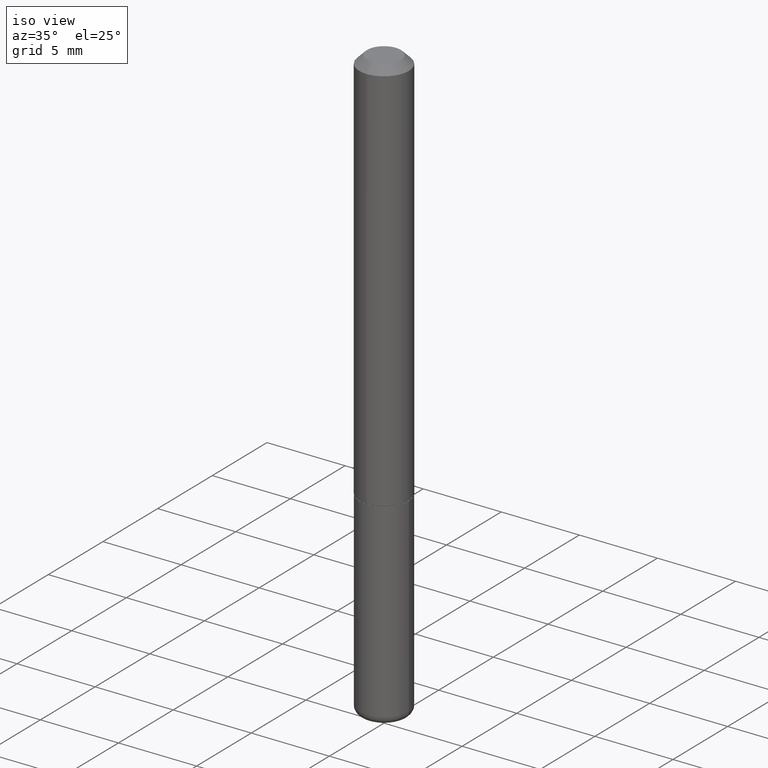
[diagram: clean part render]
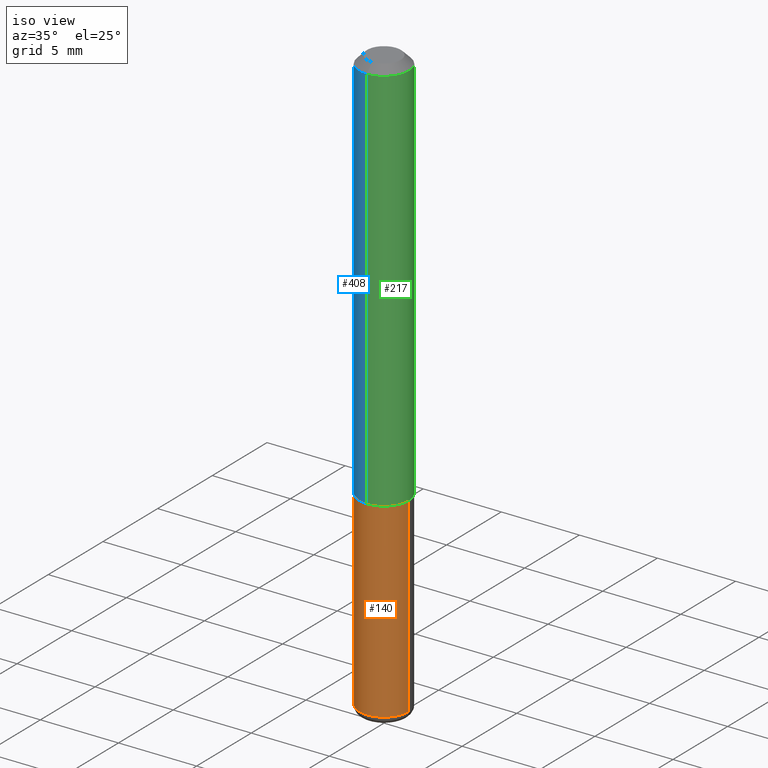
[diagram: same view with three faces highlighted in distinct colors, each labeled with its STEP entity id]
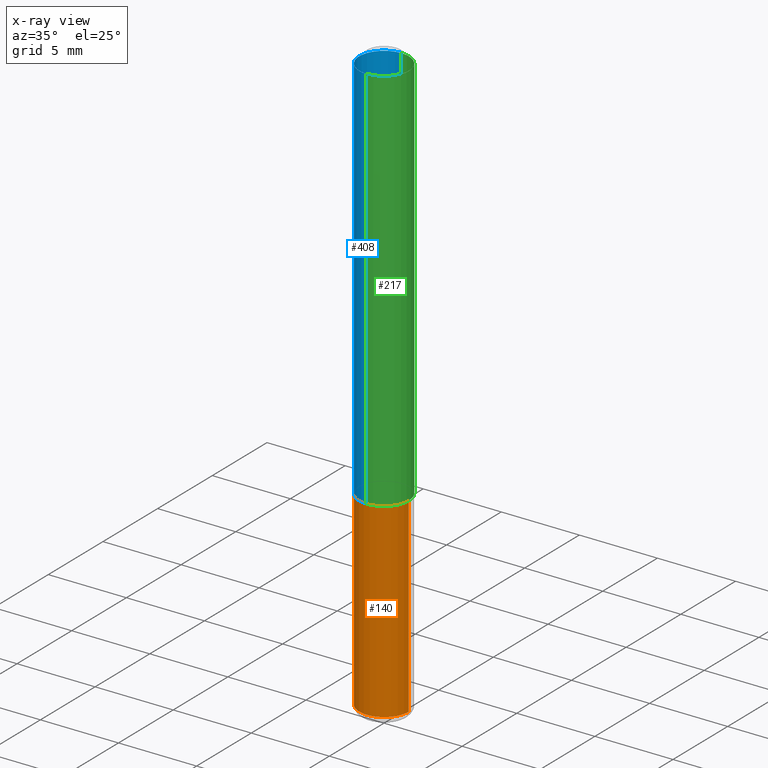
[diagram: x-ray of the same camera — body ghosted, the three highlighted faces saturated]
A machine part, iso view with three faces highlighted in distinct colors.
The next image is the same camera in x-ray (body ghosted, the three faces saturated) — at least one of them is partly hidden behind the body in this view.
Their STEP definitions:

[orange] entity #140 — the highlighted cylindrical surface (edge-blend (fillet) strip) has radius 1.5875 mm, axis along (-0, 0, 1).
#5 = CARTESIAN_POINT ( 'NONE',  ( 0.06250000000000001388, -4.364351673553918173E-16, 3.047610484872460571E-30 ) ) ;
#9 = DIRECTION ( 'NONE',  ( -2.445468806185136597E-29, 3.491481338843145583E-15, 1.000000000000000000 ) ) ;
#17 = AXIS2_PLACEMENT_3D ( 'NONE', #123, #275, #401 ) ;
#21 = CARTESIAN_POINT ( 'NONE',  ( -0.06250000000000001388, 4.440892098500627148E-16, -3.074334431409317165E-30 ) ) ;
#28 = CARTESIAN_POINT ( 'NONE',  ( -0.06250000000000001388, -4.723303171637793051E-15, -1.479999999999999982 ) ) ;
#35 = EDGE_CURVE ( 'NONE', #258, #110, #50, .T. ) ;
#44 = FACE_OUTER_BOUND ( 'NONE', #105, .T. ) ;
#49 = CARTESIAN_POINT ( 'NONE',  ( -0.06250000000000001388, -3.885347650315437417E-15, -0.9999999999999996669 ) ) ;
#50 = CIRCLE ( 'NONE', #174, 0.06250000000000001388 ) ;
#81 = DIRECTION ( 'NONE',  ( -2.445468806185136877E-29, 3.491481338843145188E-15, 1.000000000000000000 ) ) ;
#105 = EDGE_LOOP ( 'NONE', ( #228, #403, #381, #202 ) ) ;
#110 = VERTEX_POINT ( 'NONE', #368 ) ;
#123 = CARTESIAN_POINT ( 'NONE',  ( 0.000000000000000000, 0.000000000000000000, 0.000000000000000000 ) ) ;
#140 = ADVANCED_FACE ( 'NONE', ( #44 ), #405, .T. ) ;
#157 = EDGE_CURVE ( 'NONE', #258, #362, #409, .T. ) ;
#174 = AXIS2_PLACEMENT_3D ( 'NONE', #418, #324, #294 ) ;
#184 = VECTOR ( 'NONE', #81, 39.37007874015748143 ) ;
#186 = CARTESIAN_POINT ( 'NONE',  ( 0.06250000000000001388, -3.927916506198536858E-15, -0.9999999999999996669 ) ) ;
#202 = ORIENTED_EDGE ( 'NONE', *, *, #360, .F. ) ;
#228 = ORIENTED_EDGE ( 'NONE', *, *, #157, .F. ) ;
#229 = EDGE_CURVE ( 'NONE', #110, #290, #296, .T. ) ;
#257 = VECTOR ( 'NONE', #373, 39.37007874015748143 ) ;
#258 = VERTEX_POINT ( 'NONE', #28 ) ;
#275 = DIRECTION ( 'NONE',  ( -2.445468806185136597E-29, 3.491481338843145583E-15, 1.000000000000000000 ) ) ;
#283 = AXIS2_PLACEMENT_3D ( 'NONE', #299, #9, #331 ) ;
#290 = VERTEX_POINT ( 'NONE', #186 ) ;
#294 = DIRECTION ( 'NONE',  ( 1.000000000000000000, -6.982962677686261189E-15, 0.000000000000000000 ) ) ;
#296 = LINE ( 'NONE', #5, #184 ) ;
#299 = CARTESIAN_POINT ( 'NONE',  ( 2.445468806185136036E-29, -3.491481338843144399E-15, -0.9999999999999996669 ) ) ;
#324 = DIRECTION ( 'NONE',  ( -2.445468806185136597E-29, 3.491481338843145583E-15, 1.000000000000000000 ) ) ;
#331 = DIRECTION ( 'NONE',  ( 1.000000000000000000, -6.982962677686269077E-15, 0.000000000000000000 ) ) ;
#360 = EDGE_CURVE ( 'NONE', #362, #290, #374, .T. ) ;
#362 = VERTEX_POINT ( 'NONE', #49 ) ;
#368 = CARTESIAN_POINT ( 'NONE',  ( 0.06250000000000001388, -5.603827548843246548E-15, -1.479999999999999982 ) ) ;
#373 = DIRECTION ( 'NONE',  ( -2.445468806185136877E-29, 3.491481338843145188E-15, 1.000000000000000000 ) ) ;
#374 = CIRCLE ( 'NONE', #283, 0.06250000000000001388 ) ;
#381 = ORIENTED_EDGE ( 'NONE', *, *, #229, .T. ) ;
#401 = DIRECTION ( 'NONE',  ( 1.000000000000000000, -6.982962677686267499E-15, 4.876176775795935793E-29 ) ) ;
#403 = ORIENTED_EDGE ( 'NONE', *, *, #35, .T. ) ;
#405 = CYLINDRICAL_SURFACE ( 'NONE', #17, 0.06250000000000001388 ) ;
#409 = LINE ( 'NONE', #21, #257 ) ;
#418 = CARTESIAN_POINT ( 'NONE',  ( 3.619293833154002365E-29, -5.167392381487854879E-15, -1.479999999999999982 ) ) ;

[blue] entity #408 — the highlighted cylindrical surface (edge-blend (fillet) strip) has radius 1.5875 mm, axis along (-0, 0, 1).
#12 = CARTESIAN_POINT ( 'NONE',  ( -4.364351673553682501E-16, -0.06250000000000363598, -0.9989999999999996660 ) ) ;
#37 = CYLINDRICAL_SURFACE ( 'NONE', #265, 0.06250000000000002776 ) ;
#38 = ORIENTED_EDGE ( 'NONE', *, *, #376, .T. ) ;
#46 = DIRECTION ( 'NONE',  ( -6.982962677686265922E-15, -1.000000000000000000, 3.551402391763545142E-15 ) ) ;
#70 = EDGE_LOOP ( 'NONE', ( #239, #388, #38, #321 ) ) ;
#74 = EDGE_CURVE ( 'NONE', #135, #261, #136, .T. ) ;
#111 = VECTOR ( 'NONE', #221, 39.37007874015748143 ) ;
#126 = CARTESIAN_POINT ( 'NONE',  ( -4.287811248607198352E-16, -0.06250000000000001388, -0.01999999999999984776 ) ) ;
#132 = CARTESIAN_POINT ( 'NONE',  ( -4.364351673553918666E-16, -0.06250000000000002776, 2.202416981789175288E-16 ) ) ;
#135 = VERTEX_POINT ( 'NONE', #279 ) ;
#136 = CIRCLE ( 'NONE', #282, 0.06249999999999995143 ) ;
#137 = AXIS2_PLACEMENT_3D ( 'NONE', #226, #289, #197 ) ;
#161 = DIRECTION ( 'NONE',  ( -2.422853900557315141E-29, 3.523867170862678489E-15, 1.000000000000000000 ) ) ;
#162 = FACE_OUTER_BOUND ( 'NONE', #70, .T. ) ;
#170 = CARTESIAN_POINT ( 'NONE',  ( 0.000000000000000000, 0.000000000000000000, 0.000000000000000000 ) ) ;
#178 = LINE ( 'NONE', #396, #327 ) ;
#197 = DIRECTION ( 'NONE',  ( -6.982962677686265133E-15, -1.000000000000000000, 4.370956789862812472E-15 ) ) ;
#213 = DIRECTION ( 'NONE',  ( -2.422853900557315141E-29, 3.523867170862678489E-15, 1.000000000000000000 ) ) ;
#221 = DIRECTION ( 'NONE',  ( -2.422853900557315141E-29, 3.523867170862678489E-15, 1.000000000000000000 ) ) ;
#226 = CARTESIAN_POINT ( 'NONE',  ( 2.420431046656757310E-29, -3.520343303691815911E-15, -0.9989999999999998881 ) ) ;
#237 = EDGE_CURVE ( 'NONE', #326, #135, #178, .T. ) ;
#239 = ORIENTED_EDGE ( 'NONE', *, *, #237, .F. ) ;
#246 = CARTESIAN_POINT ( 'NONE',  ( 4.440892098500754352E-16, 0.06249999999999659994, -0.9990000000000002212 ) ) ;
#249 = EDGE_CURVE ( 'NONE', #326, #415, #412, .T. ) ;
#261 = VERTEX_POINT ( 'NONE', #126 ) ;
#265 = AXIS2_PLACEMENT_3D ( 'NONE', #170, #161, #301 ) ;
#279 = CARTESIAN_POINT ( 'NONE',  ( 4.364351673553917187E-16, 0.06249999999999988204, -0.02000000000000029185 ) ) ;
#282 = AXIS2_PLACEMENT_3D ( 'NONE', #335, #213, #46 ) ;
#286 = LINE ( 'NONE', #132, #111 ) ;
#289 = DIRECTION ( 'NONE',  ( -2.422853900557315141E-29, 3.523867170862678489E-15, 1.000000000000000000 ) ) ;
#297 = DIRECTION ( 'NONE',  ( -2.422853900557315141E-29, 3.523867170862678489E-15, 1.000000000000000000 ) ) ;
#301 = DIRECTION ( 'NONE',  ( -6.982962677686266711E-15, -1.000000000000000000, 3.523867170862678884E-15 ) ) ;
#321 = ORIENTED_EDGE ( 'NONE', *, *, #74, .F. ) ;
#326 = VERTEX_POINT ( 'NONE', #246 ) ;
#327 = VECTOR ( 'NONE', #297, 39.37007874015748143 ) ;
#335 = CARTESIAN_POINT ( 'NONE',  ( 4.845707801114646817E-31, -7.047734341725380940E-17, -0.02000000000000006981 ) ) ;
#376 = EDGE_CURVE ( 'NONE', #415, #261, #286, .T. ) ;
#388 = ORIENTED_EDGE ( 'NONE', *, *, #249, .T. ) ;
#396 = CARTESIAN_POINT ( 'NONE',  ( 4.440892098500628134E-16, 0.06250000000000002776, -2.202416981789175288E-16 ) ) ;
#408 = ADVANCED_FACE ( 'NONE', ( #162 ), #37, .T. ) ;
#412 = CIRCLE ( 'NONE', #137, 0.06250000000000012490 ) ;
#415 = VERTEX_POINT ( 'NONE', #12 ) ;

[green] entity #217 — the highlighted cylindrical surface (edge-blend (fillet) strip) has radius 1.5875 mm, axis along (-0, 0, 1).
#6 = ORIENTED_EDGE ( 'NONE', *, *, #209, .T. ) ;
#8 = DIRECTION ( 'NONE',  ( -6.982962677686265922E-15, -1.000000000000000000, 3.551402391763545142E-15 ) ) ;
#12 = CARTESIAN_POINT ( 'NONE',  ( -4.364351673553682501E-16, -0.06250000000000363598, -0.9989999999999996660 ) ) ;
#45 = DIRECTION ( 'NONE',  ( -2.422853900557315141E-29, 3.523867170862678489E-15, 1.000000000000000000 ) ) ;
#65 = EDGE_CURVE ( 'NONE', #261, #135, #311, .T. ) ;
#79 = DIRECTION ( 'NONE',  ( -2.422853900557315141E-29, 3.523867170862678489E-15, 1.000000000000000000 ) ) ;
#82 = AXIS2_PLACEMENT_3D ( 'NONE', #223, #284, #84 ) ;
#84 = DIRECTION ( 'NONE',  ( -6.982962677686265133E-15, -1.000000000000000000, 4.370956789862812472E-15 ) ) ;
#101 = CIRCLE ( 'NONE', #82, 0.06250000000000012490 ) ;
#111 = VECTOR ( 'NONE', #221, 39.37007874015748143 ) ;
#126 = CARTESIAN_POINT ( 'NONE',  ( -4.287811248607198352E-16, -0.06250000000000001388, -0.01999999999999984776 ) ) ;
#132 = CARTESIAN_POINT ( 'NONE',  ( -4.364351673553918666E-16, -0.06250000000000002776, 2.202416981789175288E-16 ) ) ;
#133 = AXIS2_PLACEMENT_3D ( 'NONE', #274, #45, #267 ) ;
#135 = VERTEX_POINT ( 'NONE', #279 ) ;
#150 = ORIENTED_EDGE ( 'NONE', *, *, #65, .F. ) ;
#167 = EDGE_LOOP ( 'NONE', ( #6, #356, #150, #259 ) ) ;
#178 = LINE ( 'NONE', #396, #327 ) ;
#209 = EDGE_CURVE ( 'NONE', #415, #326, #101, .T. ) ;
#217 = ADVANCED_FACE ( 'NONE', ( #330 ), #236, .T. ) ;
#221 = DIRECTION ( 'NONE',  ( -2.422853900557315141E-29, 3.523867170862678489E-15, 1.000000000000000000 ) ) ;
#223 = CARTESIAN_POINT ( 'NONE',  ( 2.420431046656757310E-29, -3.520343303691815911E-15, -0.9989999999999998881 ) ) ;
#235 = CARTESIAN_POINT ( 'NONE',  ( 4.845707801114646817E-31, -7.047734341725380940E-17, -0.02000000000000006981 ) ) ;
#236 = CYLINDRICAL_SURFACE ( 'NONE', #133, 0.06250000000000002776 ) ;
#237 = EDGE_CURVE ( 'NONE', #326, #135, #178, .T. ) ;
#246 = CARTESIAN_POINT ( 'NONE',  ( 4.440892098500754352E-16, 0.06249999999999659994, -0.9990000000000002212 ) ) ;
#259 = ORIENTED_EDGE ( 'NONE', *, *, #376, .F. ) ;
#261 = VERTEX_POINT ( 'NONE', #126 ) ;
#267 = DIRECTION ( 'NONE',  ( -6.982962677686266711E-15, -1.000000000000000000, 3.523867170862678884E-15 ) ) ;
#274 = CARTESIAN_POINT ( 'NONE',  ( 0.000000000000000000, 0.000000000000000000, 0.000000000000000000 ) ) ;
#279 = CARTESIAN_POINT ( 'NONE',  ( 4.364351673553917187E-16, 0.06249999999999988204, -0.02000000000000029185 ) ) ;
#284 = DIRECTION ( 'NONE',  ( -2.422853900557315141E-29, 3.523867170862678489E-15, 1.000000000000000000 ) ) ;
#286 = LINE ( 'NONE', #132, #111 ) ;
#297 = DIRECTION ( 'NONE',  ( -2.422853900557315141E-29, 3.523867170862678489E-15, 1.000000000000000000 ) ) ;
#307 = AXIS2_PLACEMENT_3D ( 'NONE', #235, #79, #8 ) ;
#311 = CIRCLE ( 'NONE', #307, 0.06249999999999995143 ) ;
#326 = VERTEX_POINT ( 'NONE', #246 ) ;
#327 = VECTOR ( 'NONE', #297, 39.37007874015748143 ) ;
#330 = FACE_OUTER_BOUND ( 'NONE', #167, .T. ) ;
#356 = ORIENTED_EDGE ( 'NONE', *, *, #237, .T. ) ;
#376 = EDGE_CURVE ( 'NONE', #415, #261, #286, .T. ) ;
#396 = CARTESIAN_POINT ( 'NONE',  ( 4.440892098500628134E-16, 0.06250000000000002776, -2.202416981789175288E-16 ) ) ;
#415 = VERTEX_POINT ( 'NONE', #12 ) ;